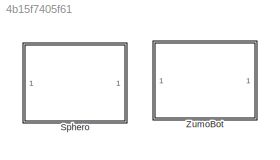
MODEL slx_4b15f7405f61
KIND library
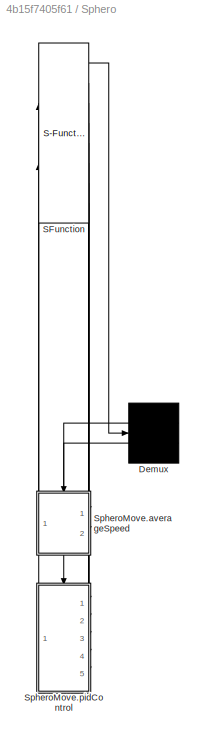
BLOCK [SubSystem] Sphero
  ErrorFcn = Stateflow.Translate.translate
  PermitHierarchicalResolution = ExplicitOnly
  Ports = []
  RequestExecContextInheritance = off
  SFBlockType = Chart
  TreatAsAtomicUnit = on
BLOCK [Demux] Sphero/ Demux 
  Outputs = 2
  Ports = [1, 2]
BLOCK [S-Function] Sphero/ SFunction 
  EnableBusSupport = off
  FunctionName = sf_sfun
  Parameters = Kd,Ki,Kp,restartspeed,stopRadius,stopspeed
  PortCounts = [2 8]
  Ports = [2, 8]
  Tag = Stateflow S-Function minionLogic 4
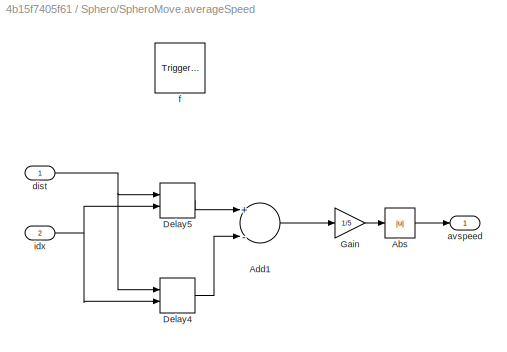
BLOCK [SubSystem] Sphero/SpheroMove.averageSpeed
  Ports = [2, 1, 0, 1]
  PreDeleteFcn = Stateflow.SLINSF.SimulinkMan.removePreDeleteFcn
  RequestExecContextInheritance = off
  UndoDeleteFcn = Stateflow.SLINSF.SimulinkMan.restorePreDeleteFcn
BLOCK [Abs] Sphero/SpheroMove.averageSpeed/Abs
  SaturateOnIntegerOverflow = off
BLOCK [Sum] Sphero/SpheroMove.averageSpeed/Add1
  InputSameDT = off
  Inputs = +-
  OutDataTypeStr = Inherit: Inherit via internal rule
  Ports = [2, 1]
  SaturateOnIntegerOverflow = off
BLOCK [Delay] Sphero/SpheroMove.averageSpeed/Delay4
  DelayLength = 6
  ExternalReset = Rising
  InputPortMap = u0,r5
  Ports = [2, 1]
BLOCK [Delay] Sphero/SpheroMove.averageSpeed/Delay5
  DelayLength = 1
  ExternalReset = Rising
  InputPortMap = u0,r5
  Ports = [2, 1]
BLOCK [Gain] Sphero/SpheroMove.averageSpeed/Gain
  Gain = 1/5
  OutDataTypeStr = Inherit: Inherit via internal rule
  ParamDataTypeStr = Inherit: Inherit via internal rule
  SaturateOnIntegerOverflow = off
BLOCK [Outport] Sphero/SpheroMove.averageSpeed/avspeed
  IconDisplay = Port number
BLOCK [Inport] Sphero/SpheroMove.averageSpeed/dist
  IconDisplay = Port number
  OutDataTypeStr = double
  PortDimensions = 1
  SignalType = real
  VarSizeSig = No
BLOCK [TriggerPort] Sphero/SpheroMove.averageSpeed/f
  CopyFcn = Stateflow.SLINSF.SimulinkMan.removeBlockPreDeleteFcn
  Ports = []
  PreDeleteFcn = Stateflow.SLINSF.SimulinkMan.unsafePredeleteFcn
  StatesWhenEnabling = held
  TriggerType = function-call
BLOCK [Inport] Sphero/SpheroMove.averageSpeed/idx
  IconDisplay = Port number
  OutDataTypeStr = double
  Port = 2
  PortDimensions = 1
  SignalType = real
  VarSizeSig = No
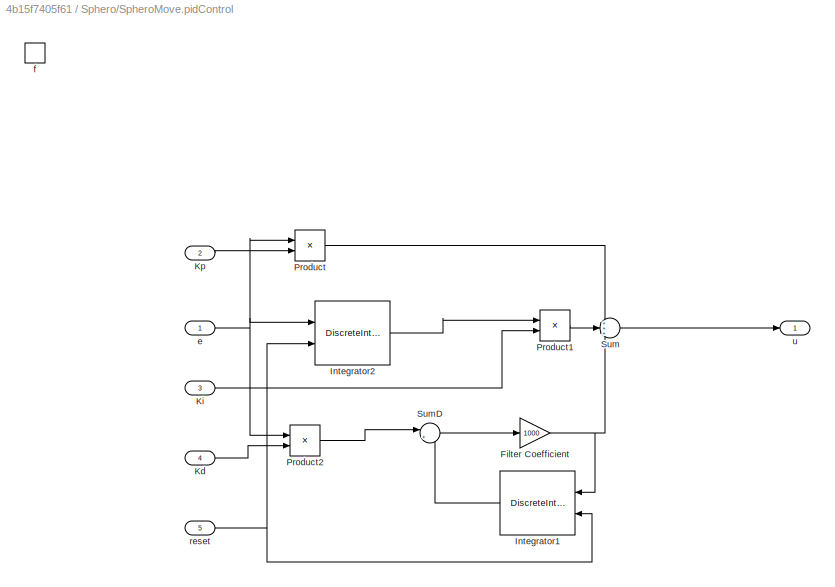
BLOCK [SubSystem] Sphero/SpheroMove.pidControl
  Ports = [5, 1, 0, 1]
  PreDeleteFcn = Stateflow.SLINSF.SimulinkMan.removePreDeleteFcn
  RequestExecContextInheritance = off
  UndoDeleteFcn = Stateflow.SLINSF.SimulinkMan.restorePreDeleteFcn
BLOCK [Gain] Sphero/SpheroMove.pidControl/Filter Coefficient
  Gain = 1000
  OutDataTypeStr = Inherit: Inherit via internal rule
  ParamDataTypeStr = Inherit: Inherit via internal rule
  SaturateOnIntegerOverflow = off
BLOCK [DiscreteIntegrator] Sphero/SpheroMove.pidControl/Integrator1
  ExternalReset = rising
  InitialConditionSetting = State (most efficient)
  IntegratorMethod = Accumulation: Forward Euler
  Ports = [2, 1]
  SampleTime = -1
BLOCK [DiscreteIntegrator] Sphero/SpheroMove.pidControl/Integrator2
  ExternalReset = rising
  InitialConditionSetting = State (most efficient)
  IntegratorMethod = Accumulation: Forward Euler
  Ports = [2, 1]
  SampleTime = -1
BLOCK [Inport] Sphero/SpheroMove.pidControl/Kd
  IconDisplay = Port number
  OutDataTypeStr = double
  Port = 4
  PortDimensions = 1
  SignalType = real
  VarSizeSig = No
BLOCK [Inport] Sphero/SpheroMove.pidControl/Ki
  IconDisplay = Port number
  OutDataTypeStr = double
  Port = 3
  PortDimensions = 1
  SignalType = real
  VarSizeSig = No
BLOCK [Inport] Sphero/SpheroMove.pidControl/Kp
  IconDisplay = Port number
  OutDataTypeStr = double
  Port = 2
  PortDimensions = 1
  SignalType = real
  VarSizeSig = No
BLOCK [Product] Sphero/SpheroMove.pidControl/Product
  InputSameDT = off
  OutDataTypeStr = Inherit: Inherit via internal rule
  Ports = [2, 1]
  RndMeth = Floor
  SaturateOnIntegerOverflow = off
BLOCK [Product] Sphero/SpheroMove.pidControl/Product1
  InputSameDT = off
  OutDataTypeStr = Inherit: Inherit via internal rule
  Ports = [2, 1]
  RndMeth = Floor
  SaturateOnIntegerOverflow = off
BLOCK [Product] Sphero/SpheroMove.pidControl/Product2
  InputSameDT = off
  OutDataTypeStr = Inherit: Inherit via internal rule
  Ports = [2, 1]
  RndMeth = Floor
  SaturateOnIntegerOverflow = off
BLOCK [Sum] Sphero/SpheroMove.pidControl/Sum
  IconShape = round
  InputSameDT = off
  Inputs = +++
  OutDataTypeStr = Inherit: Inherit via internal rule
  Ports = [3, 1]
  SaturateOnIntegerOverflow = off
BLOCK [Sum] Sphero/SpheroMove.pidControl/SumD
  DisableCoverage = on
  IconShape = round
  InputSameDT = off
  Inputs = |+-
  OutDataTypeStr = Inherit: Inherit via internal rule
  Ports = [2, 1]
  SaturateOnIntegerOverflow = off
BLOCK [Inport] Sphero/SpheroMove.pidControl/e
  IconDisplay = Port number
  OutDataTypeStr = double
  PortDimensions = 1
  SignalType = real
  VarSizeSig = No
BLOCK [TriggerPort] Sphero/SpheroMove.pidControl/f
  CopyFcn = Stateflow.SLINSF.SimulinkMan.removeBlockPreDeleteFcn
  Ports = []
  PreDeleteFcn = Stateflow.SLINSF.SimulinkMan.unsafePredeleteFcn
  StatesWhenEnabling = held
  TriggerType = function-call
BLOCK [Inport] Sphero/SpheroMove.pidControl/reset
  IconDisplay = Port number
  OutDataTypeStr = double
  Port = 5
  PortDimensions = 1
  SignalType = real
  VarSizeSig = No
BLOCK [Outport] Sphero/SpheroMove.pidControl/u
  IconDisplay = Port number
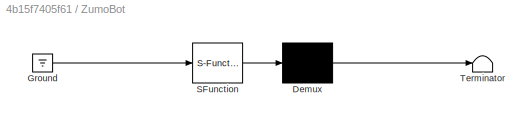
BLOCK [SubSystem] ZumoBot
  ErrorFcn = Stateflow.Translate.translate
  PermitHierarchicalResolution = ExplicitOnly
  Ports = []
  RequestExecContextInheritance = off
  SFBlockType = Chart
  TreatAsAtomicUnit = on
BLOCK [Demux] ZumoBot/ Demux 
  Outputs = 1
  Ports = [1, 1]
BLOCK [Ground] ZumoBot/ Ground 
BLOCK [S-Function] ZumoBot/ SFunction 
  EnableBusSupport = off
  FunctionName = sf_sfun
  PortCounts = [1 1]
  Ports = [1, 1]
  Tag = Stateflow S-Function minionLogic 1
BLOCK [Terminator] ZumoBot/ Terminator 
CHART ZumoBot states=2 transitions=1
  STATE_LABEL 'ZumoBot related logic'
  STATE_LABEL 'Standby'
CHART Sphero states=12 transitions=10
  STATE_LABEL 'TurnOn'
  STATE_LABEL '{Wake = true;}'
  STATE_LABEL 'TurnOff'
  STATE_LABEL '{Wake = false;}'
  STATE_LABEL 'SpheroWait'
  STATE_LABEL 'SpheroMove'
  STATE_LABEL 'ComputeDist\n\nen:\n[dist, angle] = relativePos(desPos, curPos);\navspeed = averageSpeed(dist,1);\ndu:\n[dist, angle] = relativePos(desPos, curPos);\navspeed = averageSpeed(dist,0);\n'
  STATE_LABEL 'Control\nen: velocity = pidControl(dist, Kp, Ki, Kd, 1);'
  STATE_LABEL 'Motion\nen, du: velocity = pidControl(dist, Kp, Ki, Kd, 0);'
  STATE_LABEL 'Restart\nen, du: velocity = restartspeed;'
  STATE_LABEL 'Stop\nen:\nWake = false;'
  STATE_LABEL '[dist<stopRadius]'
  STATE_LABEL '[avspeed>stopspeed]'
  STATE_LABEL '[avspeed<stopspeed]'
  STATE_LABEL '[dist<stopRadius]'
  STATE_LABEL '[distance, angleOut] = relativePos(desiredPos, currentPos)'
  STATE_LABEL "SCRIPT:\nfunction [distance, angleOut] = relativePos(desiredPos, currentPos)\n\ncoder.extrinsic('radtodeg', 'pdist')\ndistance = 0;\nangleOut = 0;\n\nif currentPos(1)<0 || currentPos(2)<0\n    \n    return\nend\n%% Angle and distance calculation\n \n%Angle of desired position wrt y axis (or orientation of sphero)\nangleOut = atan2(desiredPos(1)-currentPos(1), desiredPos(2)-currentPos(2));\n\nif angleOut<0\n    ang...<+162ch>"
  STATE_LABEL 'u = pidControl(e,Kp,Ki,Kd,reset)'
  STATE_LABEL 'avspeed = averageSpeed(dist,idx)'
  STATE_LABEL 'ComputeDist\n\nen:\n[dist, angle] = relativePos(desPos, curPos);\navspeed = averageSpeed(dist,1);\ndu:\n[dist, angle] = relativePos(desPos, curPos);\navspeed = averageSpeed(dist,0);\n'
  STATE_LABEL 'Control\nen: velocity = pidControl(dist, Kp, Ki, Kd, 1);'
  STATE_LABEL 'Motion\nen, du: velocity = pidControl(dist, Kp, Ki, Kd, 0);'
  STATE_LABEL 'Restart\nen, du: velocity = restartspeed;'
  STATE_LABEL 'Stop\nen:\nWake = false;'
  STATE_LABEL '[dist<stopRadius]'
  STATE_LABEL '[avspeed>stopspeed]'
  STATE_LABEL '[avspeed<stopspeed]'
  STATE_LABEL '[dist<stopRadius]'
  STATE_LABEL 'Motion\nen, du: velocity = pidControl(dist, Kp, Ki, Kd, 0);'
  STATE_LABEL 'Restart\nen, du: velocity = restartspeed;'
  STATE_LABEL 'Stop\nen:\nWake = false;'
  STATE_LABEL '[distance, angleOut] = relativePos(desiredPos, currentPos)'
  STATE_LABEL "SCRIPT:\nfunction [distance, angleOut] = relativePos(desiredPos, currentPos)\n\ncoder.extrinsic('radtodeg', 'pdist')\ndistance = 0;\nangleOut = 0;\n\nif currentPos(1)<0 || currentPos(2)<0\n    \n    return\nend\n%% Angle and distance calculation\n \n%Angle of desired position wrt y axis (or orientation of sphero)\nangleOut = atan2(desiredPos(1)-currentPos(1), desiredPos(2)-currentPos(2));\n\nif angleOut<0\n    ang...<+162ch>"
  STATE_LABEL 'u = pidControl(e,Kp,Ki,Kd,reset)'
  STATE_LABEL 'avspeed = averageSpeed(dist,idx)'
